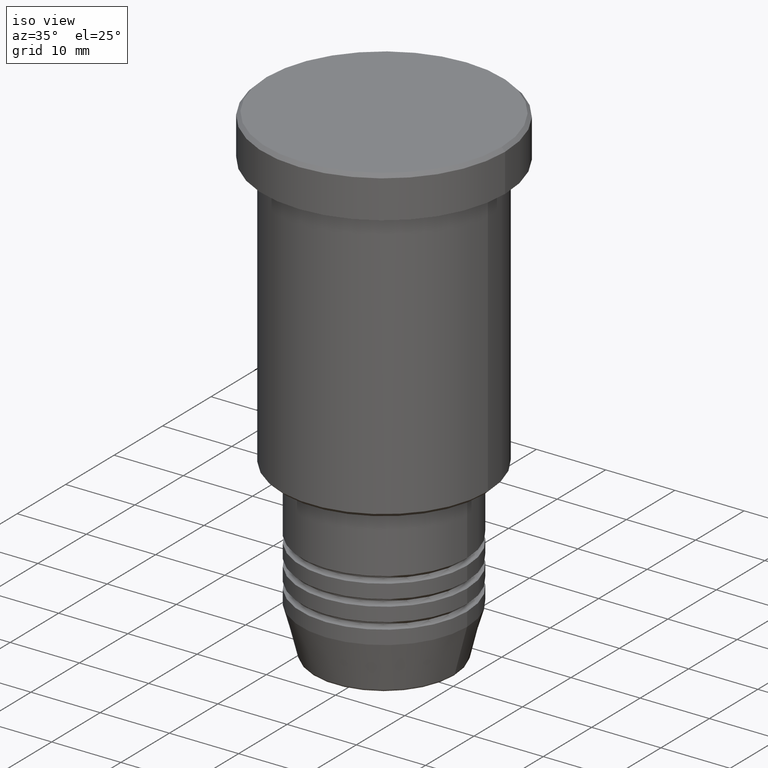
[diagram: clean part render]
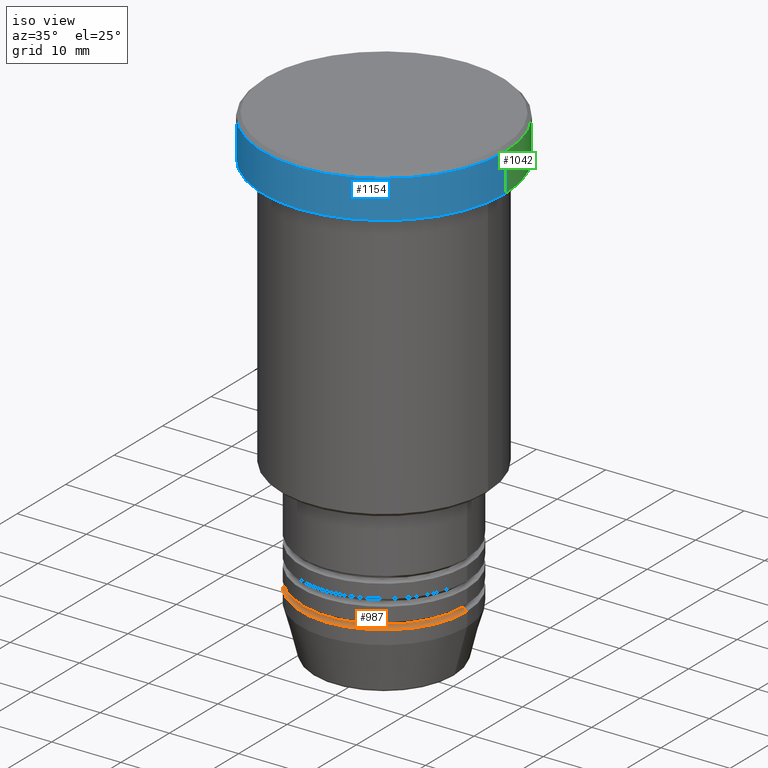
[diagram: same view with three faces highlighted in distinct colors, each labeled with its STEP entity id]
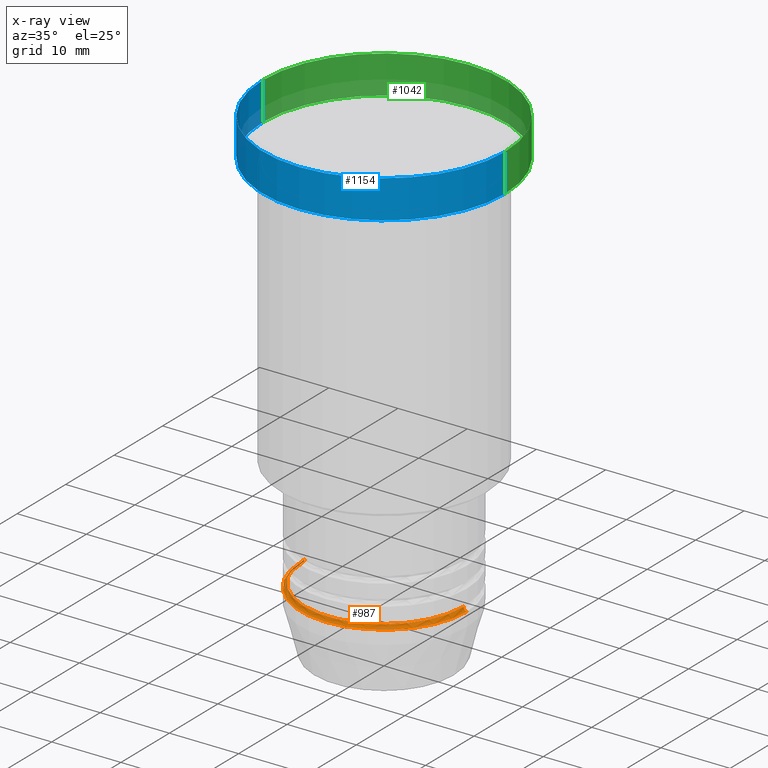
[diagram: x-ray of the same camera — body ghosted, the three highlighted faces saturated]
A machine part, iso view with three faces highlighted in distinct colors.
The next image is the same camera in x-ray (body ghosted, the three faces saturated) — at least one of them is partly hidden behind the body in this view.
Their STEP definitions:

[orange] entity #987 — the highlighted toroidal blend (fillet) surface has major radius 12 mm and minor (blend) radius 0.5 mm.
#9 = CARTESIAN_POINT ( 'NONE',  ( -12.00000000000000000, 1.469576158976823947E-15, -61.49999999999999289 ) ) ;
#14 = DIRECTION ( 'NONE',  ( 1.224646799147353207E-16, 1.000000000000000000, 0.000000000000000000 ) ) ;
#41 = EDGE_CURVE ( 'NONE', #306, #378, #181, .T. ) ;
#57 = AXIS2_PLACEMENT_3D ( 'NONE', #1081, #279, #101 ) ;
#65 = EDGE_LOOP ( 'NONE', ( #1040, #834, #1018, #980 ) ) ;
#70 = CARTESIAN_POINT ( 'NONE',  ( 0.000000000000000000, 0.000000000000000000, -61.49999999999999289 ) ) ;
#74 = DIRECTION ( 'NONE',  ( 1.000000000000000000, 0.000000000000000000, 0.000000000000000000 ) ) ;
#80 = CIRCLE ( 'NONE', #57, 0.5000000000000004441 ) ;
#88 = CARTESIAN_POINT ( 'NONE',  ( 0.000000000000000000, 0.000000000000000000, -61.49999999999999289 ) ) ;
#101 = DIRECTION ( 'NONE',  ( 0.000000000000000000, 0.000000000000000000, -1.000000000000000000 ) ) ;
#114 = AXIS2_PLACEMENT_3D ( 'NONE', #88, #447, #869 ) ;
#131 = CARTESIAN_POINT ( 'NONE',  ( -11.50000000000000000, 1.438959988998139963E-15, -61.49999999999999289 ) ) ;
#181 = CIRCLE ( 'NONE', #711, 12.00000000000000000 ) ;
#220 = CARTESIAN_POINT ( 'NONE',  ( 12.00000000000000000, 0.000000000000000000, -62.00000000000000000 ) ) ;
#270 = CARTESIAN_POINT ( 'NONE',  ( 11.50000000000000000, 0.000000000000000000, -61.49999999999999289 ) ) ;
#279 = DIRECTION ( 'NONE',  ( 0.000000000000000000, -1.000000000000000000, 0.000000000000000000 ) ) ;
#287 = VERTEX_POINT ( 'NONE', #270 ) ;
#306 = VERTEX_POINT ( 'NONE', #379 ) ;
#322 = DIRECTION ( 'NONE',  ( -0.000000000000000000, -0.000000000000000000, 1.000000000000000000 ) ) ;
#357 = EDGE_CURVE ( 'NONE', #396, #306, #681, .T. ) ;
#378 = VERTEX_POINT ( 'NONE', #220 ) ;
#379 = CARTESIAN_POINT ( 'NONE',  ( -12.00000000000000000, 1.469576158976823947E-15, -62.00000000000000000 ) ) ;
#396 = VERTEX_POINT ( 'NONE', #131 ) ;
#447 = DIRECTION ( 'NONE',  ( -0.000000000000000000, -0.000000000000000000, 1.000000000000000000 ) ) ;
#598 = AXIS2_PLACEMENT_3D ( 'NONE', #9, #14, #752 ) ;
#599 = DIRECTION ( 'NONE',  ( 1.000000000000000000, 0.000000000000000000, 0.000000000000000000 ) ) ;
#651 = CIRCLE ( 'NONE', #916, 11.50000000000000000 ) ;
#681 = CIRCLE ( 'NONE', #598, 0.5000000000000004441 ) ;
#711 = AXIS2_PLACEMENT_3D ( 'NONE', #1092, #1162, #74 ) ;
#738 = EDGE_CURVE ( 'NONE', #287, #378, #80, .T. ) ;
#752 = DIRECTION ( 'NONE',  ( -1.000000000000000000, 1.224646799147353454E-16, 0.000000000000000000 ) ) ;
#823 = TOROIDAL_SURFACE ( 'NONE', #114, 12.00000000000000000, 0.5000000000000000000 ) ;
#834 = ORIENTED_EDGE ( 'NONE', *, *, #357, .T. ) ;
#869 = DIRECTION ( 'NONE',  ( 1.000000000000000000, 0.000000000000000000, 0.000000000000000000 ) ) ;
#905 = FACE_OUTER_BOUND ( 'NONE', #65, .T. ) ;
#916 = AXIS2_PLACEMENT_3D ( 'NONE', #70, #322, #599 ) ;
#942 = EDGE_CURVE ( 'NONE', #396, #287, #651, .T. ) ;
#980 = ORIENTED_EDGE ( 'NONE', *, *, #738, .F. ) ;
#987 = ADVANCED_FACE ( 'NONE', ( #905 ), #823, .F. ) ;
#1018 = ORIENTED_EDGE ( 'NONE', *, *, #41, .T. ) ;
#1040 = ORIENTED_EDGE ( 'NONE', *, *, #942, .F. ) ;
#1081 = CARTESIAN_POINT ( 'NONE',  ( 12.00000000000000000, 0.000000000000000000, -61.49999999999999289 ) ) ;
#1092 = CARTESIAN_POINT ( 'NONE',  ( 0.000000000000000000, 0.000000000000000000, -62.00000000000000000 ) ) ;
#1162 = DIRECTION ( 'NONE',  ( -0.000000000000000000, -0.000000000000000000, 1.000000000000000000 ) ) ;

[blue] entity #1154 — the highlighted cylindrical surface (partial cylindrical patch) has radius 17.5 mm, axis along (-0, -0, 1).
#11 = DIRECTION ( 'NONE',  ( -0.000000000000000000, -0.000000000000000000, 1.000000000000000000 ) ) ;
#18 = CIRCLE ( 'NONE', #896, 17.50000000000000000 ) ;
#117 = ORIENTED_EDGE ( 'NONE', *, *, #684, .F. ) ;
#123 = CARTESIAN_POINT ( 'NONE',  ( 0.000000000000000000, 0.000000000000000000, -5.999999999999995559 ) ) ;
#282 = DIRECTION ( 'NONE',  ( 1.000000000000000000, 0.000000000000000000, 0.000000000000000000 ) ) ;
#329 = ORIENTED_EDGE ( 'NONE', *, *, #915, .T. ) ;
#348 = AXIS2_PLACEMENT_3D ( 'NONE', #667, #919, #731 ) ;
#387 = FACE_OUTER_BOUND ( 'NONE', #669, .T. ) ;
#397 = LINE ( 'NONE', #772, #876 ) ;
#452 = LINE ( 'NONE', #552, #1104 ) ;
#484 = DIRECTION ( 'NONE',  ( -0.000000000000000000, -0.000000000000000000, 1.000000000000000000 ) ) ;
#512 = VERTEX_POINT ( 'NONE', #1022 ) ;
#552 = CARTESIAN_POINT ( 'NONE',  ( -17.50000000000000000, 2.143131898507868248E-15, 0.000000000000000000 ) ) ;
#553 = VERTEX_POINT ( 'NONE', #1058 ) ;
#643 = CYLINDRICAL_SURFACE ( 'NONE', #348, 17.50000000000000000 ) ;
#667 = CARTESIAN_POINT ( 'NONE',  ( 0.000000000000000000, 0.000000000000000000, 0.000000000000000000 ) ) ;
#669 = EDGE_LOOP ( 'NONE', ( #117, #696, #329, #830 ) ) ;
#684 = EDGE_CURVE ( 'NONE', #512, #743, #452, .T. ) ;
#696 = ORIENTED_EDGE ( 'NONE', *, *, #866, .T. ) ;
#731 = DIRECTION ( 'NONE',  ( 1.000000000000000000, 0.000000000000000000, 0.000000000000000000 ) ) ;
#743 = VERTEX_POINT ( 'NONE', #1007 ) ;
#772 = CARTESIAN_POINT ( 'NONE',  ( 17.50000000000000000, 0.000000000000000000, 0.000000000000000000 ) ) ;
#777 = CIRCLE ( 'NONE', #841, 17.50000000000000000 ) ;
#830 = ORIENTED_EDGE ( 'NONE', *, *, #1089, .T. ) ;
#837 = DIRECTION ( 'NONE',  ( 0.000000000000000000, 0.000000000000000000, -1.000000000000000000 ) ) ;
#841 = AXIS2_PLACEMENT_3D ( 'NONE', #1110, #837, #282 ) ;
#851 = DIRECTION ( 'NONE',  ( 1.000000000000000000, 0.000000000000000000, 0.000000000000000000 ) ) ;
#866 = EDGE_CURVE ( 'NONE', #512, #961, #18, .T. ) ;
#876 = VECTOR ( 'NONE', #1128, 1000.000000000000000 ) ;
#896 = AXIS2_PLACEMENT_3D ( 'NONE', #123, #484, #851 ) ;
#915 = EDGE_CURVE ( 'NONE', #961, #553, #397, .T. ) ;
#919 = DIRECTION ( 'NONE',  ( -0.000000000000000000, -0.000000000000000000, 1.000000000000000000 ) ) ;
#961 = VERTEX_POINT ( 'NONE', #964 ) ;
#964 = CARTESIAN_POINT ( 'NONE',  ( 17.50000000000000000, 0.000000000000000000, -5.999999999999995559 ) ) ;
#1007 = CARTESIAN_POINT ( 'NONE',  ( -17.50000000000000000, 2.143131898507868248E-15, -0.5000000000000213163 ) ) ;
#1022 = CARTESIAN_POINT ( 'NONE',  ( -17.50000000000000000, 2.143131898507868248E-15, -5.999999999999995559 ) ) ;
#1058 = CARTESIAN_POINT ( 'NONE',  ( 17.50000000000000000, 0.000000000000000000, -0.5000000000000213163 ) ) ;
#1089 = EDGE_CURVE ( 'NONE', #553, #743, #777, .T. ) ;
#1104 = VECTOR ( 'NONE', #11, 1000.000000000000000 ) ;
#1110 = CARTESIAN_POINT ( 'NONE',  ( 0.000000000000000000, 0.000000000000000000, -0.5000000000000213163 ) ) ;
#1128 = DIRECTION ( 'NONE',  ( -0.000000000000000000, -0.000000000000000000, 1.000000000000000000 ) ) ;
#1154 = ADVANCED_FACE ( 'NONE', ( #387 ), #643, .T. ) ;

[green] entity #1042 — the highlighted cylindrical surface (partial cylindrical patch) has radius 17.5 mm, axis along (-0, -0, 1).
#11 = DIRECTION ( 'NONE',  ( -0.000000000000000000, -0.000000000000000000, 1.000000000000000000 ) ) ;
#35 = ORIENTED_EDGE ( 'NONE', *, *, #603, .T. ) ;
#76 = CIRCLE ( 'NONE', #705, 17.50000000000000000 ) ;
#106 = ORIENTED_EDGE ( 'NONE', *, *, #915, .F. ) ;
#108 = EDGE_CURVE ( 'NONE', #743, #553, #846, .T. ) ;
#149 = DIRECTION ( 'NONE',  ( -0.000000000000000000, -0.000000000000000000, 1.000000000000000000 ) ) ;
#158 = ORIENTED_EDGE ( 'NONE', *, *, #684, .T. ) ;
#341 = DIRECTION ( 'NONE',  ( 1.000000000000000000, 0.000000000000000000, 0.000000000000000000 ) ) ;
#342 = CARTESIAN_POINT ( 'NONE',  ( 0.000000000000000000, 0.000000000000000000, -0.5000000000000213163 ) ) ;
#397 = LINE ( 'NONE', #772, #876 ) ;
#440 = DIRECTION ( 'NONE',  ( 1.000000000000000000, 0.000000000000000000, 0.000000000000000000 ) ) ;
#452 = LINE ( 'NONE', #552, #1104 ) ;
#512 = VERTEX_POINT ( 'NONE', #1022 ) ;
#527 = CARTESIAN_POINT ( 'NONE',  ( 0.000000000000000000, 0.000000000000000000, 0.000000000000000000 ) ) ;
#552 = CARTESIAN_POINT ( 'NONE',  ( -17.50000000000000000, 2.143131898507868248E-15, 0.000000000000000000 ) ) ;
#553 = VERTEX_POINT ( 'NONE', #1058 ) ;
#571 = AXIS2_PLACEMENT_3D ( 'NONE', #527, #591, #440 ) ;
#576 = EDGE_LOOP ( 'NONE', ( #35, #158, #867, #106 ) ) ;
#591 = DIRECTION ( 'NONE',  ( -0.000000000000000000, -0.000000000000000000, 1.000000000000000000 ) ) ;
#603 = EDGE_CURVE ( 'NONE', #961, #512, #76, .T. ) ;
#684 = EDGE_CURVE ( 'NONE', #512, #743, #452, .T. ) ;
#705 = AXIS2_PLACEMENT_3D ( 'NONE', #872, #149, #341 ) ;
#717 = DIRECTION ( 'NONE',  ( 1.000000000000000000, 0.000000000000000000, 0.000000000000000000 ) ) ;
#743 = VERTEX_POINT ( 'NONE', #1007 ) ;
#772 = CARTESIAN_POINT ( 'NONE',  ( 17.50000000000000000, 0.000000000000000000, 0.000000000000000000 ) ) ;
#846 = CIRCLE ( 'NONE', #864, 17.50000000000000000 ) ;
#864 = AXIS2_PLACEMENT_3D ( 'NONE', #342, #899, #717 ) ;
#867 = ORIENTED_EDGE ( 'NONE', *, *, #108, .T. ) ;
#872 = CARTESIAN_POINT ( 'NONE',  ( 0.000000000000000000, 0.000000000000000000, -5.999999999999995559 ) ) ;
#876 = VECTOR ( 'NONE', #1128, 1000.000000000000000 ) ;
#899 = DIRECTION ( 'NONE',  ( 0.000000000000000000, 0.000000000000000000, -1.000000000000000000 ) ) ;
#915 = EDGE_CURVE ( 'NONE', #961, #553, #397, .T. ) ;
#961 = VERTEX_POINT ( 'NONE', #964 ) ;
#964 = CARTESIAN_POINT ( 'NONE',  ( 17.50000000000000000, 0.000000000000000000, -5.999999999999995559 ) ) ;
#1007 = CARTESIAN_POINT ( 'NONE',  ( -17.50000000000000000, 2.143131898507868248E-15, -0.5000000000000213163 ) ) ;
#1022 = CARTESIAN_POINT ( 'NONE',  ( -17.50000000000000000, 2.143131898507868248E-15, -5.999999999999995559 ) ) ;
#1042 = ADVANCED_FACE ( 'NONE', ( #1075 ), #1085, .T. ) ;
#1058 = CARTESIAN_POINT ( 'NONE',  ( 17.50000000000000000, 0.000000000000000000, -0.5000000000000213163 ) ) ;
#1075 = FACE_OUTER_BOUND ( 'NONE', #576, .T. ) ;
#1085 = CYLINDRICAL_SURFACE ( 'NONE', #571, 17.50000000000000000 ) ;
#1104 = VECTOR ( 'NONE', #11, 1000.000000000000000 ) ;
#1128 = DIRECTION ( 'NONE',  ( -0.000000000000000000, -0.000000000000000000, 1.000000000000000000 ) ) ;